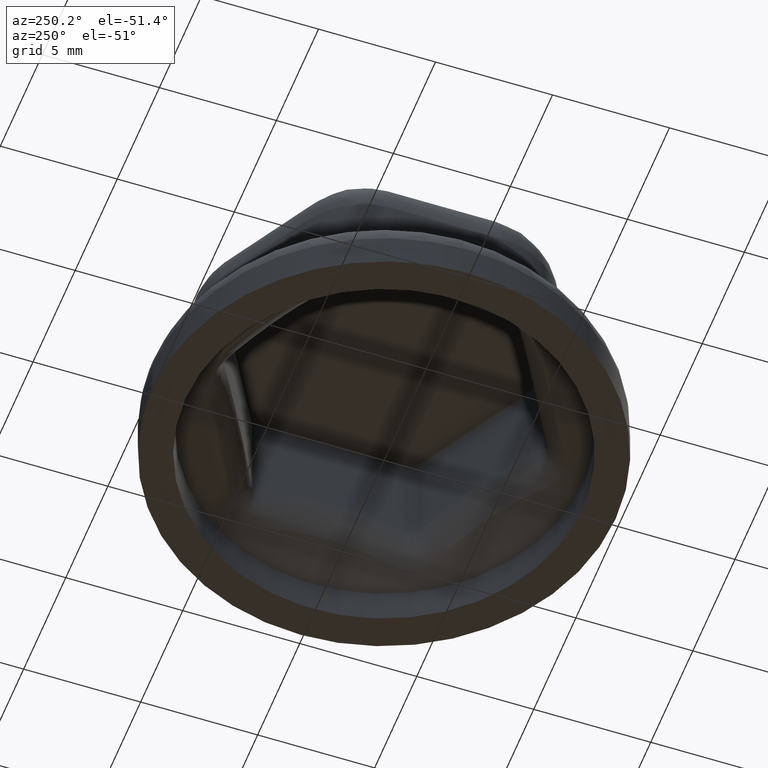
[diagram: clean part render]
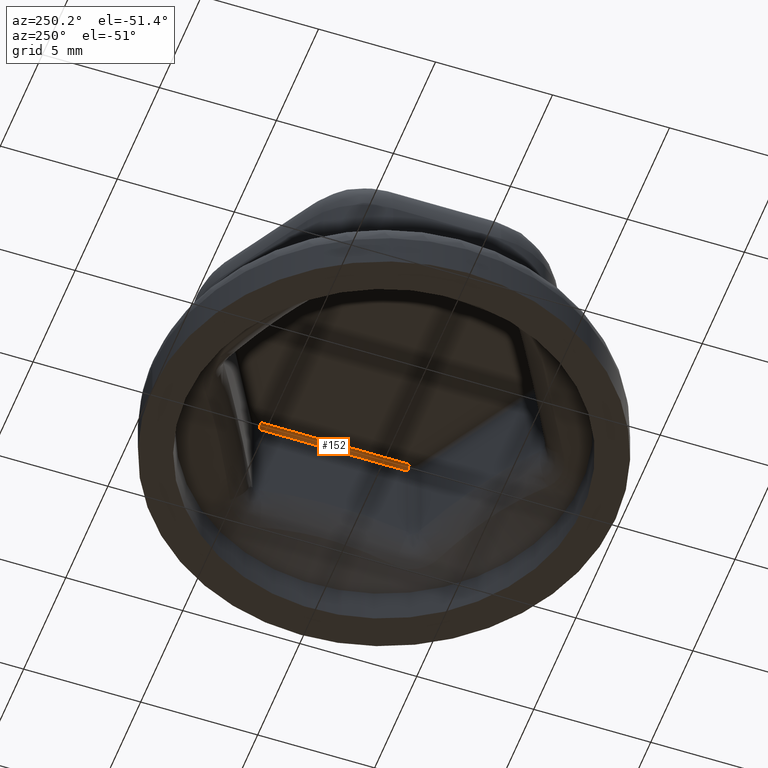
[diagram: same view with one face highlighted and labeled with its STEP entity id]
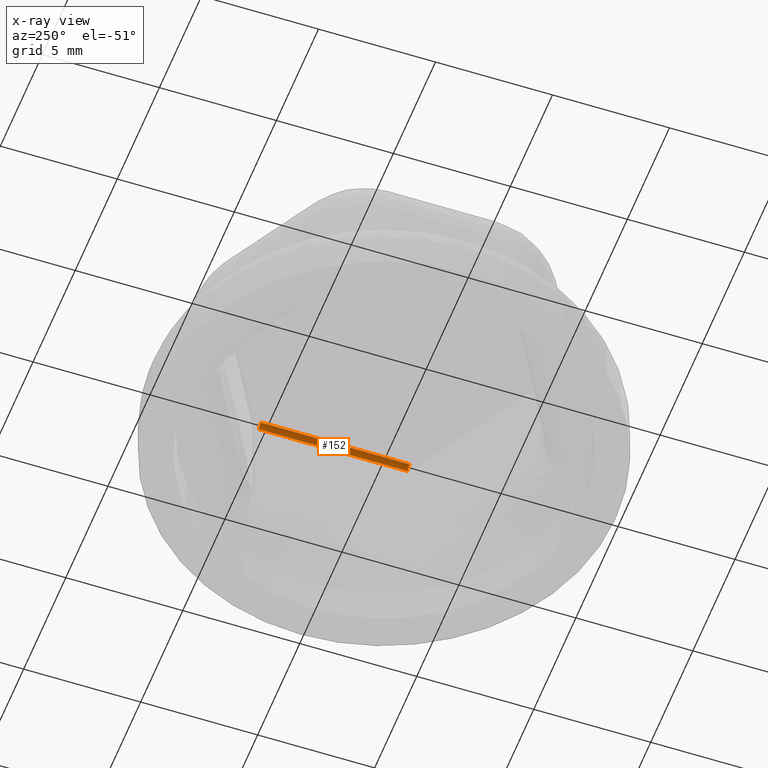
[diagram: x-ray of the same camera — body ghosted, the highlighted face saturated]
A machine part, auxiliary view. The second image highlights one B-rep face of the part: STEP entity #152.
The next image is the same camera in x-ray: the body ghosted, the highlighted face saturated — about 0% of this face is hidden behind the body in this view.
In plain terms, the highlighted cylindrical surface (edge-blend (fillet) strip) has radius 0.2 mm, axis along (0, 1, 0).
Its self-contained STEP definition (entity closure, byte-faithful):
#152 = ADVANCED_FACE( '', ( #315 ), #316, .F. );
#315 = FACE_OUTER_BOUND( '', #2737, .T. );
#316 = CYLINDRICAL_SURFACE( '', #2738, 0.200000000000000 );
#2737 = EDGE_LOOP( '', ( #3221, #3222, #3223, #3224 ) );
#2738 = AXIS2_PLACEMENT_3D( '', #3225, #3226, #3227 );
#3221 = ORIENTED_EDGE( '', *, *, #3258, .F. );
#3222 = ORIENTED_EDGE( '', *, *, #3257, .T. );
#3223 = ORIENTED_EDGE( '', *, *, #3412, .T. );
#3224 = ORIENTED_EDGE( '', *, *, #3383, .T. );
#3225 = CARTESIAN_POINT( '', ( 5.80000000000000, 3.46410161513775, 7.30000000000000 ) );
#3226 = DIRECTION( '', ( 3.33066907387547E-016, 1.00000000000000, 0.000000000000000 ) );
#3227 = DIRECTION( '', ( 1.00000000000000, -3.33066907387547E-016, 0.000000000000000 ) );
#3257 = EDGE_CURVE( '', #3439, #3443, #3445, .F. );
#3258 = EDGE_CURVE( '', #3439, #3446, #3447, .T. );
#3383 = EDGE_CURVE( '', #3646, #3446, #3647, .T. );
#3412 = EDGE_CURVE( '', #3443, #3646, #3686, .T. );
#3439 = VERTEX_POINT( '', #3829 );
#3443 = VERTEX_POINT( '', #3855 );
#3445 = LINE( '', #3858, #3859 );
#3446 = VERTEX_POINT( '', #3860 );
#3447 = CIRCLE( '', #3861, 0.200000000000000 );
#3646 = VERTEX_POINT( '', #5143 );
#3647 = LINE( '', #5144, #5145 );
#3686 = CIRCLE( '', #5190, 0.200000000000000 );
#3829 = CARTESIAN_POINT( '', ( 6.00000000000000, 3.17542648054294, 7.30000000000000 ) );
#3855 = CARTESIAN_POINT( '', ( 6.00000000000000, -3.17542648054294, 7.30000000000000 ) );
#3858 = CARTESIAN_POINT( '', ( 6.00000000000000, -3.17542648054294, 7.30000000000000 ) );
#3859 = VECTOR( '', #5215, 1000.00000000000 );
#3860 = CARTESIAN_POINT( '', ( 5.80000000000000, 3.17542648054294, 7.50000000000000 ) );
#3861 = AXIS2_PLACEMENT_3D( '', #5216, #5217, #5218 );
#5143 = CARTESIAN_POINT( '', ( 5.80000000000000, -3.17542648054294, 7.50000000000000 ) );
#5144 = CARTESIAN_POINT( '', ( 5.80000000000000, 3.17542648054295, 7.50000000000000 ) );
#5145 = VECTOR( '', #5394, 1000.00000000000 );
#5190 = AXIS2_PLACEMENT_3D( '', #5467, #5468, #5469 );
#5215 = DIRECTION( '', ( 3.33066907387547E-016, 1.00000000000000, 0.000000000000000 ) );
#5216 = CARTESIAN_POINT( '', ( 5.80000000000000, 3.17542648054294, 7.30000000000000 ) );
#5217 = DIRECTION( '', ( 0.000000000000000, -1.00000000000000, 0.000000000000000 ) );
#5218 = DIRECTION( '', ( 0.000000000000000, 0.000000000000000, -1.00000000000000 ) );
#5394 = DIRECTION( '', ( 3.33066907387547E-016, 1.00000000000000, 0.000000000000000 ) );
#5467 = CARTESIAN_POINT( '', ( 5.80000000000000, -3.17542648054294, 7.30000000000000 ) );
#5468 = DIRECTION( '', ( 0.000000000000000, -1.00000000000000, 0.000000000000000 ) );
#5469 = DIRECTION( '', ( 0.000000000000000, 0.000000000000000, -1.00000000000000 ) );